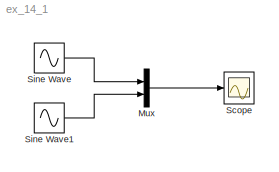
MODEL ex_14_1
KIND model
BLOCK [Mux] Mux
  DisplayOption = bar
  Inputs = 2
  Ports = [2, 1]
  SID = 2
BLOCK [Scope] Scope
  DataFormat = StructureWithTime
  Floating = off
  NumInputPorts = 1
  Ports = [1]
  SID = 1
  SampleTime = 0
  ShowLegends = off
BLOCK [Sin] Sine Wave
  Ports = [0, 1]
  SID = 4
  SampleTime = 0
BLOCK [Sin] Sine Wave1
  Frequency = 2
  Ports = [0, 1]
  SID = 5
  SampleTime = 0
LINE Mux:1 -> Scope:1
LINE Sine Wave1:1 -> Mux:2
LINE Sine Wave:1 -> Mux:1
